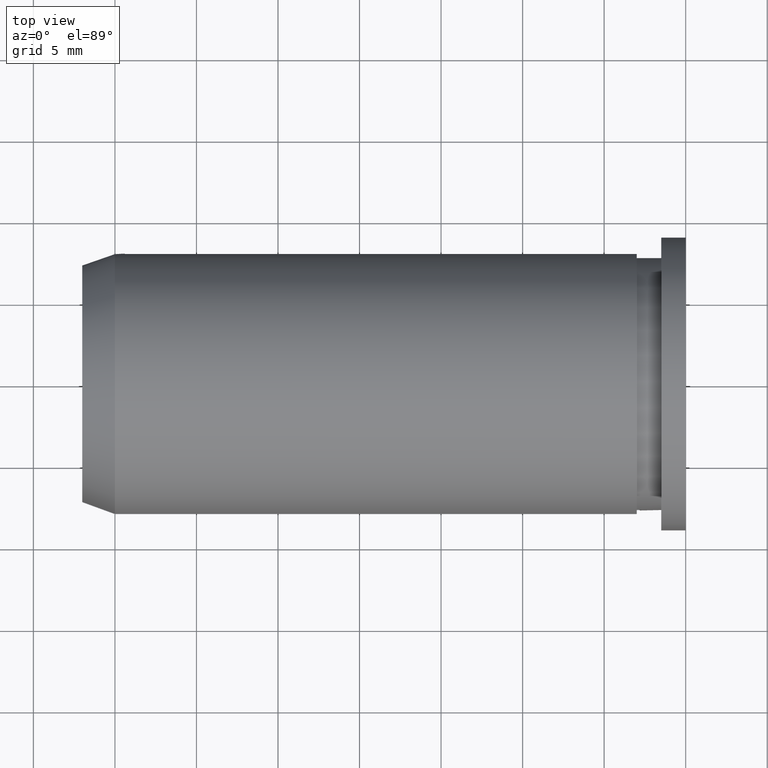
[diagram: clean part render]
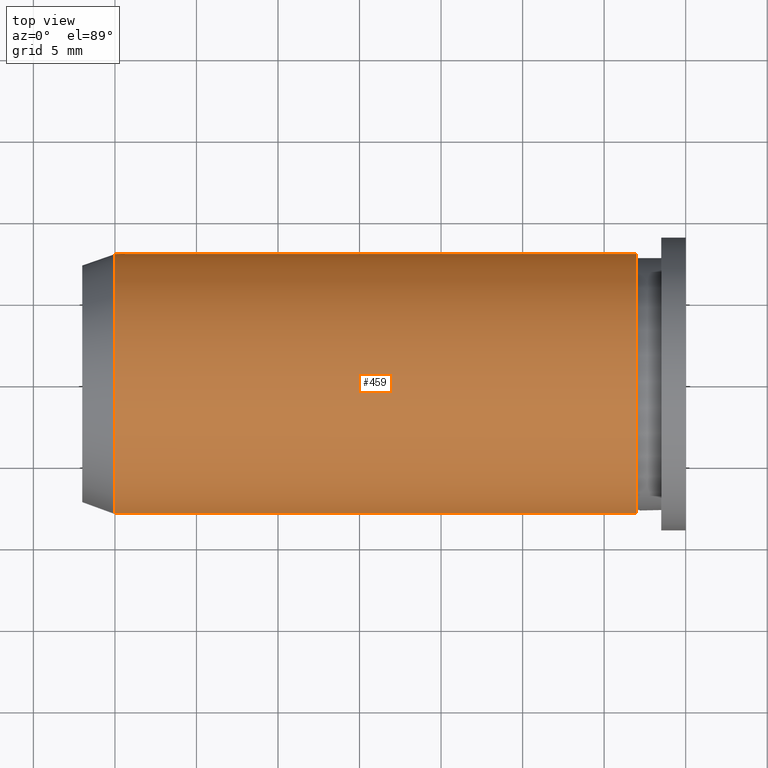
[diagram: same view with one face highlighted and labeled with its STEP entity id]
A machine part, top view. The second image highlights one B-rep face of the part: STEP entity #459.
In plain terms, the highlighted cylindrical surface (partial cylindrical patch) has radius 8 mm, axis along (-1, -0, -0).
Its self-contained STEP definition (entity closure, byte-faithful):
#18 = LINE ( 'NONE', #251, #437 ) ;
#35 = VERTEX_POINT ( 'NONE', #106 ) ;
#36 = VERTEX_POINT ( 'NONE', #498 ) ;
#41 = VECTOR ( 'NONE', #111, 1000.000000000000000 ) ;
#46 = VERTEX_POINT ( 'NONE', #243 ) ;
#48 = EDGE_CURVE ( 'NONE', #405, #178, #182, .T. ) ;
#50 = DIRECTION ( 'NONE',  ( 0.0000000000000000000, 0.0000000000000000000, 1.000000000000000000 ) ) ;
#52 = FACE_OUTER_BOUND ( 'NONE', #606, .T. ) ;
#58 = EDGE_CURVE ( 'NONE', #422, #36, #643, .T. ) ;
#83 = DIRECTION ( 'NONE',  ( -1.000000000000000000, -0.0000000000000000000, -0.0000000000000000000 ) ) ;
#91 = EDGE_CURVE ( 'NONE', #422, #407, #173, .T. ) ;
#103 = ORIENTED_EDGE ( 'NONE', *, *, #116, .T. ) ;
#104 = CIRCLE ( 'NONE', #480, 7.999999999999996400 ) ;
#106 = CARTESIAN_POINT ( 'NONE',  ( -34.99999999999999300, -7.964766161036994400, -0.7500000000000000000 ) ) ;
#111 = DIRECTION ( 'NONE',  ( -1.000000000000000000, -0.0000000000000000000, -0.0000000000000000000 ) ) ;
#116 = EDGE_CURVE ( 'NONE', #46, #189, #221, .T. ) ;
#126 = ORIENTED_EDGE ( 'NONE', *, *, #493, .T. ) ;
#139 = CARTESIAN_POINT ( 'NONE',  ( -3.000000000000002700, -7.964766161036996200, 0.7500000000000000000 ) ) ;
#147 = VECTOR ( 'NONE', #541, 1000.000000000000000 ) ;
#156 = CYLINDRICAL_SURFACE ( 'NONE', #217, 7.999999999999998200 ) ;
#173 = LINE ( 'NONE', #505, #41 ) ;
#177 = CARTESIAN_POINT ( 'NONE',  ( -34.99999999999999300, 0.0000000000000000000, 0.0000000000000000000 ) ) ;
#178 = VERTEX_POINT ( 'NONE', #617 ) ;
#180 = ORIENTED_EDGE ( 'NONE', *, *, #626, .F. ) ;
#182 = B_SPLINE_CURVE_WITH_KNOTS ( 'NONE', 3,
 ( #395, #655, #496, #549 ),
 .UNSPECIFIED., .F., .F.,
 ( 4, 4 ),
 ( 0.0000000000000000000, 0.001499999999999999800 ),
 .UNSPECIFIED. ) ;
#189 = VERTEX_POINT ( 'NONE', #202 ) ;
#201 = DIRECTION ( 'NONE',  ( 1.000000000000000000, 0.0000000000000000000, 0.0000000000000000000 ) ) ;
#202 = CARTESIAN_POINT ( 'NONE',  ( -3.000000000000002700, -7.964766161036996200, -0.7500000000000000000 ) ) ;
#217 = AXIS2_PLACEMENT_3D ( 'NONE', #382, #83, #479 ) ;
#221 = CIRCLE ( 'NONE', #424, 8.000000000000000000 ) ;
#239 = DIRECTION ( 'NONE',  ( 1.000000000000000000, 0.0000000000000000000, 0.0000000000000000000 ) ) ;
#243 = CARTESIAN_POINT ( 'NONE',  ( -3.000000000000002700, 7.964766161036996200, -0.7500000000000000000 ) ) ;
#251 = CARTESIAN_POINT ( 'NONE',  ( -38.58775536857143600, 7.964766161036994400, 0.7500000000000000000 ) ) ;
#279 = DIRECTION ( 'NONE',  ( 0.0000000000000000000, 0.0000000000000000000, 1.000000000000000000 ) ) ;
#294 = DIRECTION ( 'NONE',  ( 0.0000000000000000000, 0.0000000000000000000, 1.000000000000000000 ) ) ;
#301 = VECTOR ( 'NONE', #239, 1000.000000000000000 ) ;
#379 = AXIS2_PLACEMENT_3D ( 'NONE', #454, #648, #50 ) ;
#382 = CARTESIAN_POINT ( 'NONE',  ( -38.58775536857143600, 0.0000000000000000000, 0.0000000000000000000 ) ) ;
#388 = CARTESIAN_POINT ( 'NONE',  ( -38.58775536857143600, -7.964766161036994400, -0.7500000000000000000 ) ) ;
#392 = CARTESIAN_POINT ( 'NONE',  ( -38.58775536857143600, 7.964766161036994400, -0.7500000000000000000 ) ) ;
#395 = CARTESIAN_POINT ( 'NONE',  ( -34.38627579132227700, 7.964766161036994400, 0.7500000000000000000 ) ) ;
#405 = VERTEX_POINT ( 'NONE', #481 ) ;
#407 = VERTEX_POINT ( 'NONE', #487 ) ;
#422 = VERTEX_POINT ( 'NONE', #139 ) ;
#424 = AXIS2_PLACEMENT_3D ( 'NONE', #598, #557, #294 ) ;
#437 = VECTOR ( 'NONE', #201, 1000.000000000000000 ) ;
#445 = LINE ( 'NONE', #388, #147 ) ;
#454 = CARTESIAN_POINT ( 'NONE',  ( -3.000000000000002700, 0.0000000000000000000, 0.0000000000000000000 ) ) ;
#459 = ADVANCED_FACE ( 'NONE', ( #52 ), #156, .T. ) ;
#464 = ORIENTED_EDGE ( 'NONE', *, *, #91, .F. ) ;
#466 = EDGE_CURVE ( 'NONE', #407, #35, #104, .T. ) ;
#479 = DIRECTION ( 'NONE',  ( 0.0000000000000000000, 0.0000000000000000000, 1.000000000000000000 ) ) ;
#480 = AXIS2_PLACEMENT_3D ( 'NONE', #177, #583, #279 ) ;
#481 = CARTESIAN_POINT ( 'NONE',  ( -34.38627579132227700, 7.964766161036994400, 0.7500000000000000000 ) ) ;
#487 = CARTESIAN_POINT ( 'NONE',  ( -34.99999999999999300, -7.964766161036994400, 0.7500000000000000000 ) ) ;
#493 = EDGE_CURVE ( 'NONE', #178, #46, #578, .T. ) ;
#496 = CARTESIAN_POINT ( 'NONE',  ( -34.42675289677079300, 8.011848522580068600, -0.2500000000000008900 ) ) ;
#497 = EDGE_CURVE ( 'NONE', #189, #35, #445, .T. ) ;
#498 = CARTESIAN_POINT ( 'NONE',  ( -3.000000000000002700, 7.964766161036996200, 0.7500000000000000000 ) ) ;
#505 = CARTESIAN_POINT ( 'NONE',  ( -38.58775536857143600, -7.964766161036994400, 0.7500000000000000000 ) ) ;
#541 = DIRECTION ( 'NONE',  ( -1.000000000000000000, -0.0000000000000000000, -0.0000000000000000000 ) ) ;
#549 = CARTESIAN_POINT ( 'NONE',  ( -34.38627579132227700, 7.964766161036994400, -0.7500000000000000000 ) ) ;
#553 = ORIENTED_EDGE ( 'NONE', *, *, #497, .T. ) ;
#555 = ORIENTED_EDGE ( 'NONE', *, *, #466, .F. ) ;
#557 = DIRECTION ( 'NONE',  ( -1.000000000000000000, -0.0000000000000000000, -0.0000000000000000000 ) ) ;
#577 = ORIENTED_EDGE ( 'NONE', *, *, #48, .T. ) ;
#578 = LINE ( 'NONE', #392, #301 ) ;
#583 = DIRECTION ( 'NONE',  ( -1.000000000000000000, -0.0000000000000000000, -0.0000000000000000000 ) ) ;
#598 = CARTESIAN_POINT ( 'NONE',  ( -3.000000000000002700, 0.0000000000000000000, 0.0000000000000000000 ) ) ;
#606 = EDGE_LOOP ( 'NONE', ( #577, #126, #103, #553, #555, #464, #631, #180 ) ) ;
#617 = CARTESIAN_POINT ( 'NONE',  ( -34.38627579132227700, 7.964766161036994400, -0.7500000000000000000 ) ) ;
#626 = EDGE_CURVE ( 'NONE', #405, #36, #18, .T. ) ;
#631 = ORIENTED_EDGE ( 'NONE', *, *, #58, .T. ) ;
#643 = CIRCLE ( 'NONE', #379, 8.000000000000000000 ) ;
#648 = DIRECTION ( 'NONE',  ( -1.000000000000000000, -0.0000000000000000000, -0.0000000000000000000 ) ) ;
#655 = CARTESIAN_POINT ( 'NONE',  ( -34.42675289677079300, 8.011848522580070400, 0.2500000000000000000 ) ) ;